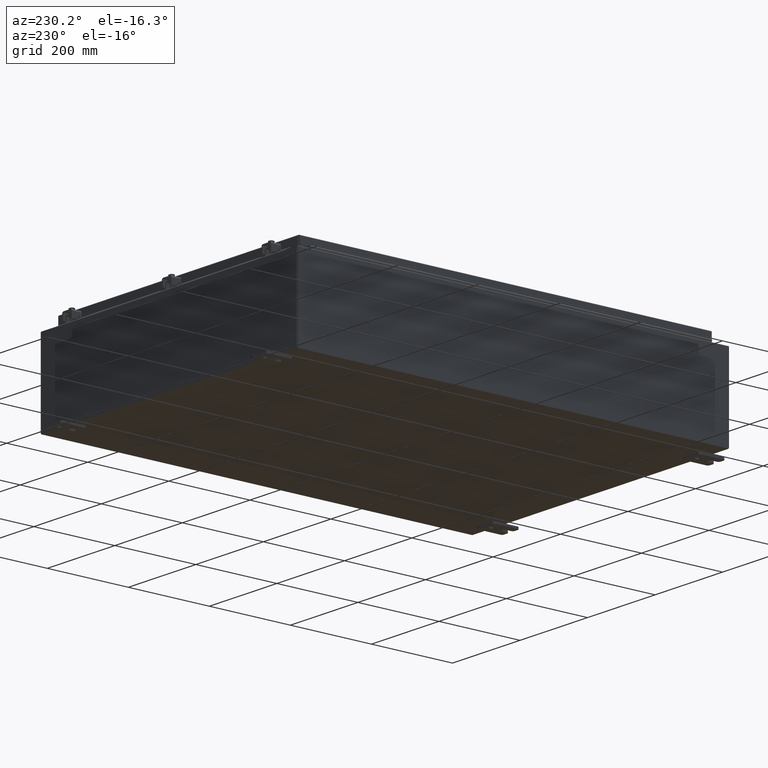
[diagram: clean part render]
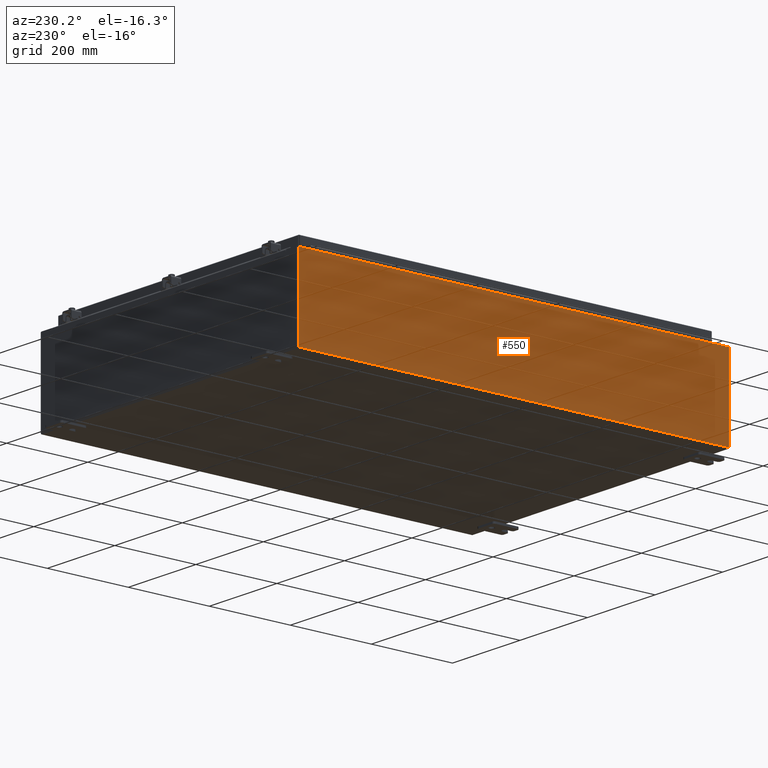
[diagram: same view with one face highlighted and labeled with its STEP entity id]
A machine part, auxiliary view. The second image highlights one B-rep face of the part: STEP entity #550.
In plain terms, the highlighted planar face has unit normal (1, 0, 0).
Its self-contained STEP definition (entity closure, byte-faithful):
#303 = DIRECTION ( 'NONE',  ( 0.0000000000000000000, 1.000000000000000000, 0.0000000000000000000 ) ) ;
#550 = ADVANCED_FACE ( 'NONE', ( #12344 ), #46444, .F. ) ;
#2661 = CARTESIAN_POINT ( 'NONE',  ( -15.00000000000002700, 20.92530000000000700, 7.837599999999999200 ) ) ;
#3544 = LINE ( 'NONE', #10854, #40797 ) ;
#6192 = VECTOR ( 'NONE', #20600, 39.37007874015748100 ) ;
#9056 = CARTESIAN_POINT ( 'NONE',  ( -14.99999999999999800, 0.0000000000000000000, -5.403395625144962100E-014 ) ) ;
#9175 = CARTESIAN_POINT ( 'NONE',  ( -14.99999999999999800, -20.92529999999998600, 0.01299999999999984700 ) ) ;
#9659 = DIRECTION ( 'NONE',  ( -0.0000000000000000000, 1.000000000000000000, -0.0000000000000000000 ) ) ;
#10854 = CARTESIAN_POINT ( 'NONE',  ( -14.99999999999999800, -20.92529999999999300, -5.403395625144962100E-014 ) ) ;
#12344 = FACE_OUTER_BOUND ( 'NONE', #37845, .T. ) ;
#13135 = DIRECTION ( 'NONE',  ( 1.000000000000000000, 0.0000000000000000000, 3.584876173029202900E-015 ) ) ;
#14589 = DIRECTION ( 'NONE',  ( -3.584876173029202900E-015, 0.0000000000000000000, 1.000000000000000000 ) ) ;
#15317 = EDGE_CURVE ( 'NONE', #25748, #37811, #27100, .T. ) ;
#19421 = EDGE_CURVE ( 'NONE', #33206, #27972, #3544, .T. ) ;
#19968 = VECTOR ( 'NONE', #9659, 39.37007874015748100 ) ;
#20600 = DIRECTION ( 'NONE',  ( 3.584876173029202900E-015, 0.0000000000000000000, -1.000000000000000000 ) ) ;
#23478 = ORIENTED_EDGE ( 'NONE', *, *, #19421, .T. ) ;
#23934 = VECTOR ( 'NONE', #303, 39.37007874015748100 ) ;
#25748 = VERTEX_POINT ( 'NONE', #2661 ) ;
#25965 = EDGE_CURVE ( 'NONE', #27972, #25748, #44905, .T. ) ;
#26201 = CARTESIAN_POINT ( 'NONE',  ( -14.99999999999999800, 20.92530000000000700, 0.01299999999999983600 ) ) ;
#27100 = LINE ( 'NONE', #31664, #6192 ) ;
#27706 = ORIENTED_EDGE ( 'NONE', *, *, #25965, .T. ) ;
#27972 = VERTEX_POINT ( 'NONE', #31044 ) ;
#29759 = CARTESIAN_POINT ( 'NONE',  ( -15.00000000000002700, -20.92529999999998900, 7.837599999999999200 ) ) ;
#29833 = LINE ( 'NONE', #46706, #19968 ) ;
#31044 = CARTESIAN_POINT ( 'NONE',  ( -15.00000000000002700, -20.92529999999998600, 7.837599999999999200 ) ) ;
#31664 = CARTESIAN_POINT ( 'NONE',  ( -14.99999999999999800, 20.92530000000000700, -5.403395625144962100E-014 ) ) ;
#33206 = VERTEX_POINT ( 'NONE', #9175 ) ;
#33274 = EDGE_CURVE ( 'NONE', #33206, #37811, #29833, .T. ) ;
#34030 = ORIENTED_EDGE ( 'NONE', *, *, #33274, .F. ) ;
#37811 = VERTEX_POINT ( 'NONE', #26201 ) ;
#37845 = EDGE_LOOP ( 'NONE', ( #27706, #39676, #34030, #23478 ) ) ;
#39170 = DIRECTION ( 'NONE',  ( 3.584876173029202900E-015, 0.0000000000000000000, -1.000000000000000000 ) ) ;
#39676 = ORIENTED_EDGE ( 'NONE', *, *, #15317, .T. ) ;
#40797 = VECTOR ( 'NONE', #14589, 39.37007874015748100 ) ;
#44905 = LINE ( 'NONE', #29759, #23934 ) ;
#46444 = PLANE ( 'NONE',  #47673 ) ;
#46706 = CARTESIAN_POINT ( 'NONE',  ( -14.99999999999999800, 20.92530000000000700, 0.01299999999999984700 ) ) ;
#47673 = AXIS2_PLACEMENT_3D ( 'NONE', #9056, #13135, #39170 ) ;